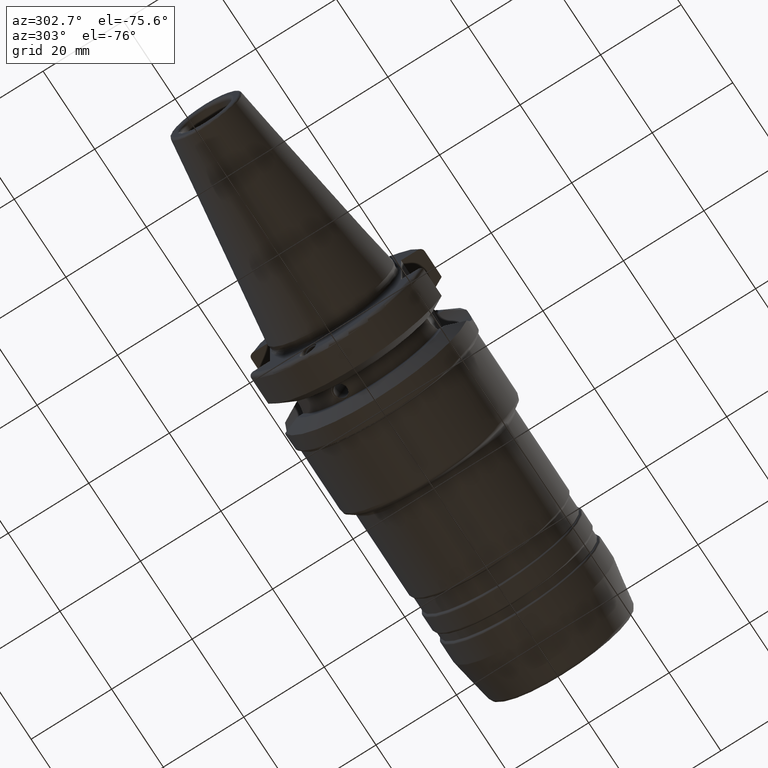
[diagram: clean part render]
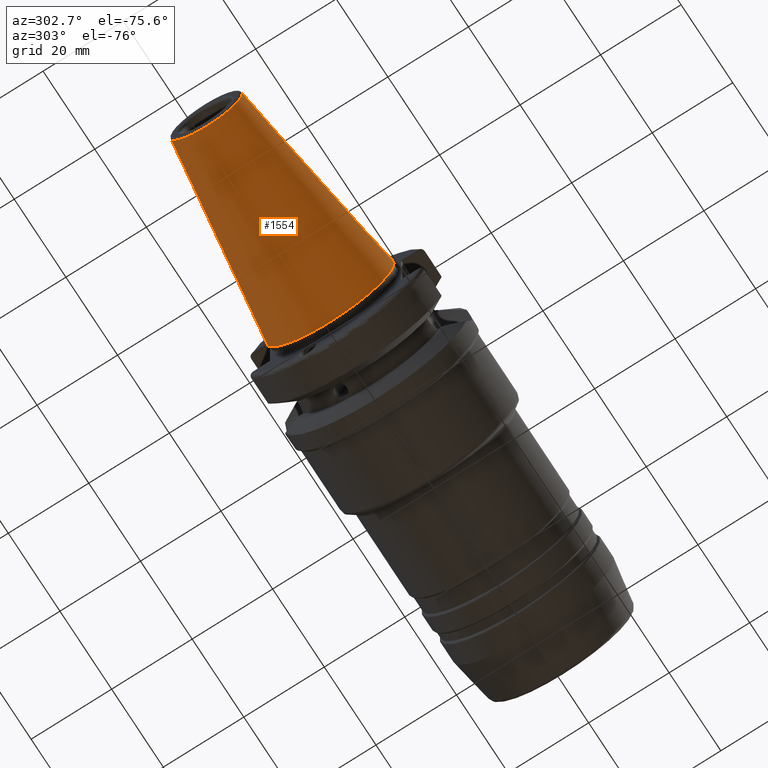
[diagram: same view with one face highlighted and labeled with its STEP entity id]
A machine part, auxiliary view. The second image highlights one B-rep face of the part: STEP entity #1554.
In plain terms, the highlighted conical surface has half-angle 8.297 deg.
Its self-contained STEP definition (entity closure, byte-faithful):
#114=CONICAL_SURFACE('',#1789,12.3770304778568,0.144812498238939);
#187=LINE('',#3059,#260);
#260=VECTOR('',#2288,12.3770304778568);
#386=FACE_OUTER_BOUND('',#490,.T.);
#490=EDGE_LOOP('',(#1409,#1410,#1411,#1412,#1413));
#594=CIRCLE('',#1786,8.87906095571352);
#595=CIRCLE('',#1787,8.87906095571352);
#597=CIRCLE('',#1790,15.875);
#742=VERTEX_POINT('',#3051);
#743=VERTEX_POINT('',#3052);
#744=VERTEX_POINT('',#3057);
#969=EDGE_CURVE('',#742,#743,#594,.T.);
#970=EDGE_CURVE('',#743,#742,#595,.T.);
#972=EDGE_CURVE('',#744,#744,#597,.T.);
#973=EDGE_CURVE('',#744,#742,#187,.T.);
#1409=ORIENTED_EDGE('',*,*,#972,.F.);
#1410=ORIENTED_EDGE('',*,*,#973,.T.);
#1411=ORIENTED_EDGE('',*,*,#969,.T.);
#1412=ORIENTED_EDGE('',*,*,#970,.T.);
#1413=ORIENTED_EDGE('',*,*,#973,.F.);
#1554=ADVANCED_FACE('',(#386),#114,.T.);
#1786=AXIS2_PLACEMENT_3D('',#3053,#2278,#2279);
#1787=AXIS2_PLACEMENT_3D('',#3054,#2280,#2281);
#1789=AXIS2_PLACEMENT_3D('',#3056,#2284,#2285);
#1790=AXIS2_PLACEMENT_3D('',#3058,#2286,#2287);
#2278=DIRECTION('center_axis',(1.,1.62798202122572E-21,0.));
#2279=DIRECTION('ref_axis',(0.,0.,-1.));
#2280=DIRECTION('center_axis',(1.,1.62798202122572E-21,0.));
#2281=DIRECTION('ref_axis',(0.,0.,-1.));
#2284=DIRECTION('center_axis',(1.,1.62798202122572E-21,0.));
#2285=DIRECTION('ref_axis',(0.,1.,0.));
#2286=DIRECTION('center_axis',(1.,1.62798202122572E-21,0.));
#2287=DIRECTION('ref_axis',(0.,0.,-1.));
#2288=DIRECTION('',(-0.989532981063282,0.144306893071729,1.76724974695192E-17));
#3051=CARTESIAN_POINT('',(-47.9721534465359,-8.87906095571352,-1.08737135788488E-15));
#3052=CARTESIAN_POINT('',(-47.9721534465359,9.94286113939637E-16,8.87906095571352));
#3053=CARTESIAN_POINT('Origin',(-47.9721534465359,2.08165747182452E-15,
0.));
#3054=CARTESIAN_POINT('Origin',(-47.9721534465359,2.08165747182452E-15,
0.));
#3056=CARTESIAN_POINT('Origin',(-23.9860767232679,2.08169652072618E-15,
0.));
#3057=CARTESIAN_POINT('',(-8.88178419700125E-15,-15.875,-1.94412679364642E-15));
#3058=CARTESIAN_POINT('Origin',(-4.44089209850063E-15,2.08173556962785E-15,
0.));
#3059=CARTESIAN_POINT('',(-23.9860767232679,-12.3770304778568,-1.51574907576565E-15));